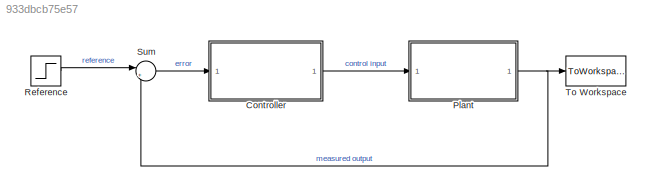
MODEL slx_933dbcb75e57
KIND model
CONFIG AbsTol = auto
CONFIG EnableMultiTasking = on
CONFIG FixedStep = auto
CONFIG MaxStep = 0.01
CONFIG MinStep = auto
CONFIG RelTol = 1e-4
CONFIG SampleTimeConstraint = Unconstrained
CONFIG Solver = VariableStepAuto
CONFIG SolverName = VariableStepAuto
CONFIG StartTime = 0.0
CONFIG StopTime = 2
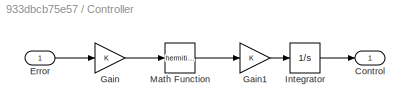
BLOCK [SubSystem] Controller
  Ports = [1, 1]
  RequestExecContextInheritance = off
  Variant = off
BLOCK [Outport] Controller/Control
  IconDisplay = Port number
BLOCK [Inport] Controller/Error
  IconDisplay = Port number
BLOCK [Gain] Controller/Gain
  OutDataTypeStr = Inherit: Inherit via internal rule
  ParamDataTypeStr = Inherit: Inherit via internal rule
  SaturateOnIntegerOverflow = off
BLOCK [Gain] Controller/Gain1
  OutDataTypeStr = Inherit: Inherit via internal rule
  ParamDataTypeStr = Inherit: Inherit via internal rule
  SaturateOnIntegerOverflow = off
BLOCK [Integrator] Controller/Integrator
  Ports = [1, 1]
BLOCK [Math] Controller/Math Function
  Operator = hermitian
  Ports = [1, 1]
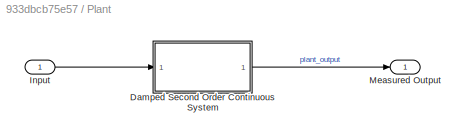
BLOCK [SubSystem] Plant
  Ports = [1, 1]
  RequestExecContextInheritance = off
  Variant = off
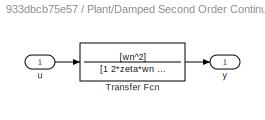
BLOCK [SubSystem] Plant/Damped Second Order Continuous System
  Ports = [1, 1]
  RequestExecContextInheritance = off
  Variant = off
BLOCK [TransferFcn] Plant/Damped Second Order Continuous System/Transfer Fcn
  Denominator = [1 2*zeta*wn wn^2]
  Numerator = [wn^2]
BLOCK [Inport] Plant/Damped Second Order Continuous System/u
  IconDisplay = Port number
BLOCK [Outport] Plant/Damped Second Order Continuous System/y
  IconDisplay = Port number
BLOCK [Inport] Plant/Input
  IconDisplay = Port number
BLOCK [Outport] Plant/Measured Output
  IconDisplay = Port number
BLOCK [Step] Reference
  SampleTime = 0
BLOCK [Sum] Sum
  IconShape = round
  InputSameDT = off
  Inputs = |+-
  OutDataTypeStr = Inherit: Inherit via internal rule
  Ports = [2, 1]
  SaturateOnIntegerOverflow = off
BLOCK [ToWorkspace] To Workspace
  FixptAsFi = on
  MaxDataPoints = inf
  Ports = [1]
  SampleTime = -1
  Save2DSignal = 3-D array (concatenate along third dimension)
  SaveFormat = Timeseries
  VariableName = simout
LINE Controller/Error:1 -> Controller/Gain:1
LINE Controller/Gain1:1 -> Controller/Integrator:1
LINE Controller/Gain:1 -> Controller/Math Function:1
LINE Controller/Integrator:1 -> Controller/Control:1
LINE Controller/Math Function:1 -> Controller/Gain1:1
LINE Controller:1 -> Plant:1
LINE Plant/Damped Second Order Continuous System/Transfer Fcn:1 -> Plant/Damped Second Order Continuous System/y:1
LINE Plant/Damped Second Order Continuous System/u:1 -> Plant/Damped Second Order Continuous System/Transfer Fcn:1
LINE Plant/Damped Second Order Continuous System:1 -> Plant/Measured Output:1
LINE Plant/Input:1 -> Plant/Damped Second Order Continuous System:1
NET Plant:1 -> Sum:2, To Workspace:1
LINE Reference:1 -> Sum:1
LINE Sum:1 -> Controller:1
note: NET lines group one-source signal fan-out (src -> all destinations, sorted); 1:1 wires keep LINE
